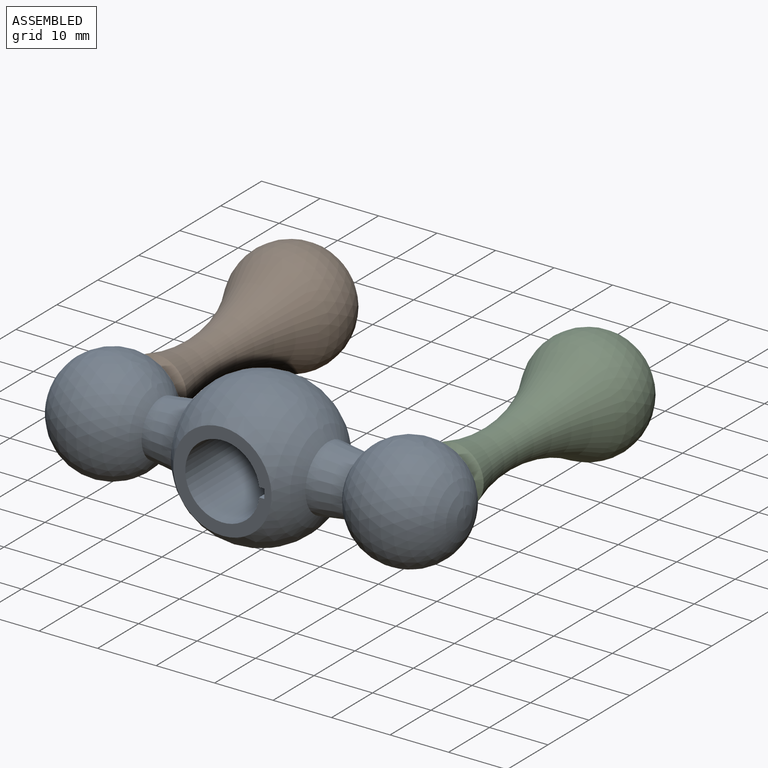
[diagram: assembled view]
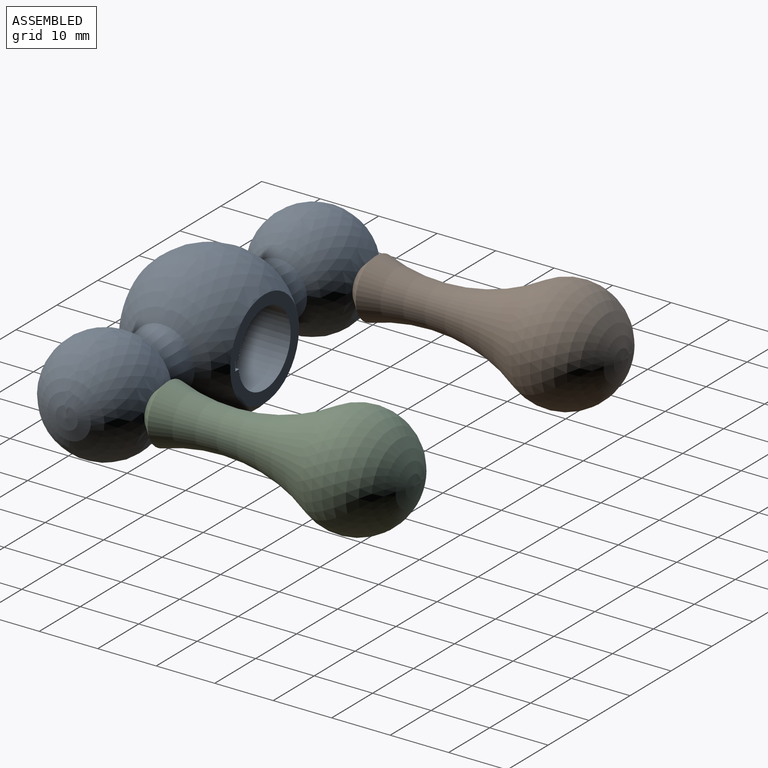
[diagram: assembled view, second angle]
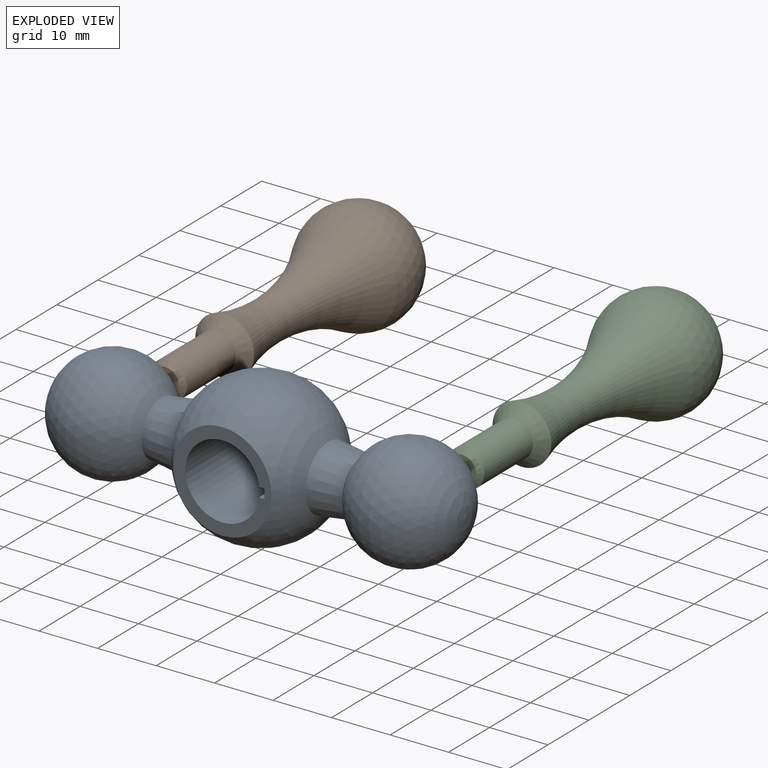
[diagram: exploded view]
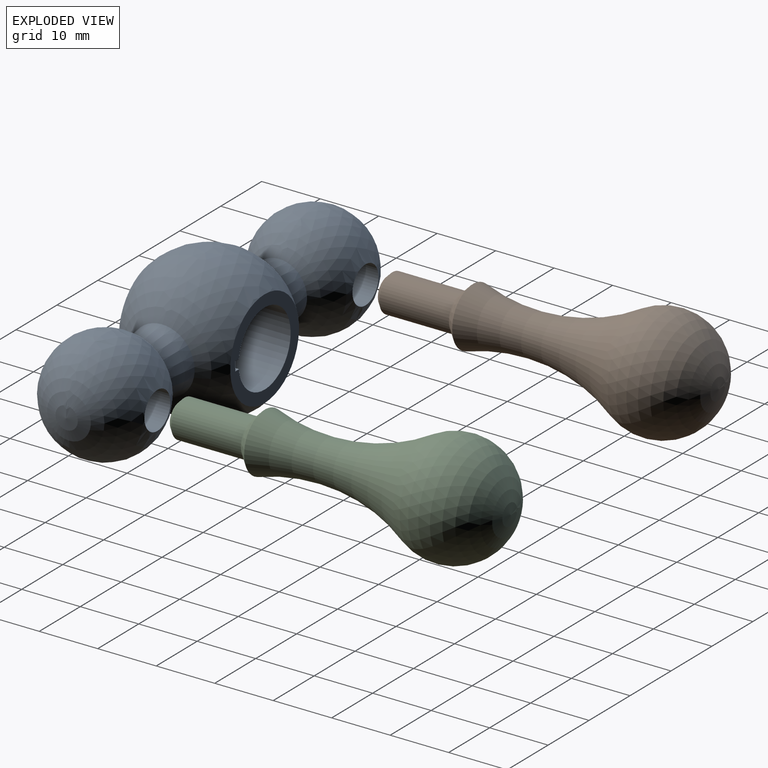
[diagram: exploded view, second angle]
ASSEMBLY  parts=3 mates=2
PART A: 15 faces, bbox 69.9x25.4x25.4 mm
  f0: sphere r=9.53mm, area 1031.1mm2, adj f6,f13
  f1: sphere r=9.53mm, area 1031.1mm2, adj f5,f11
  f2: plane 16.8x16.8mm, normal (0,-1,0), area 93.7mm2, adj f4,f7,f8,f9,f10
  f3: plane 16.8x16.8mm, normal (0,1,0), area 93.7mm2, adj f4,f7,f8,f9,f10
  f4: sphere r=12.7mm, area 1315.9mm2, adj f2,f3,f5,f6
  f5: cone r=5.56mm half-angle=7.9deg, axis (-1,0,0), area 187.6mm2, adj f1,f4
  f6: cone r=5.56mm half-angle=7.9deg, axis (1,0,0), area 187.6mm2, adj f0,f4
  f7: plane 19.05x0.84mm, normal (0,0,1), area 16.1mm2, adj f2,f3,f8,f9
  f8: cylinder r=6.35mm len=19.05mm, axis (0,-1,0), area 729.7mm2, adj f2,f3,f7,f10
  f9: plane 19.05x1.59mm, normal (-1,0,0), area 30.2mm2, adj f2,f3,f7,f10
  f10: plane 19.05x0.84mm, normal (0,0,-1), area 16.1mm2, adj f2,f3,f8,f9
  f11: cylinder r=3.17mm len=12.71mm, axis (0,1,0), area 253.6mm2, adj f1,f12
  f12: plane 6.35x6.35mm, normal (0,1,0), area 31.7mm2, adj f11
  f13: cylinder r=3.17mm len=12.71mm, axis (0,1,0), area 253.6mm2, adj f0,f14
  f14: plane 6.35x6.35mm, normal (0,1,0), area 31.7mm2, adj f13
PART B: 6 faces, bbox 28.8x56.6x28.8 mm
  f0: torus R=37.46mm, axis (0,1,0), area 837.1mm2, adj f1,f4
  f1: sphere r=9.53mm, area 860.9mm2, adj f0
  f2: plane 4.76x4.76mm, normal (0,-1,0), area 17.8mm2, adj f5
  f3: cylinder r=3.17mm len=11.91mm, axis (0,1,0), area 237.5mm2, adj f4,f5
  f4: cone r=5.03mm half-angle=45deg, axis (0,1,0), area 67.6mm2, adj f0,f3
  f5: cone r=3.17mm half-angle=45deg, axis (0,1,0), area 19.6mm2, adj f2,f3
PART C: same geometry as B
PLACE A at identity fixed
PLACE B t=(-25.4,-1.08,0)mm
PLACE C t=(25.4,-1.08,0)mm
MATE fastened A.f13 <-> B.f0  axis (0,1,0) through (-25.4,-3.73,0)mm
MATE fastened C.f0 <-> A.f11  axis (0,-1,0) through (25.4,-3.73,0)mm
